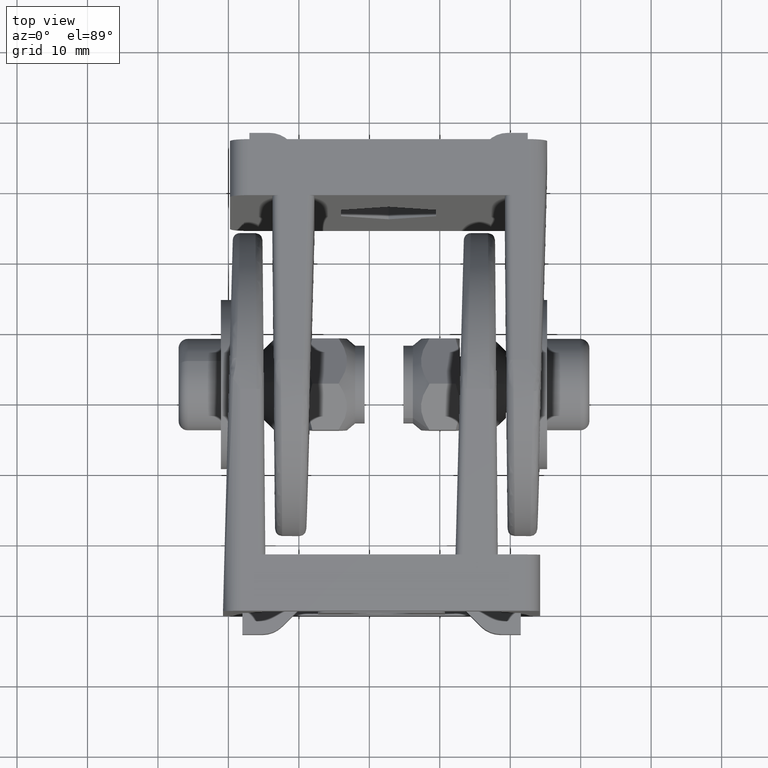
[diagram: clean part render]
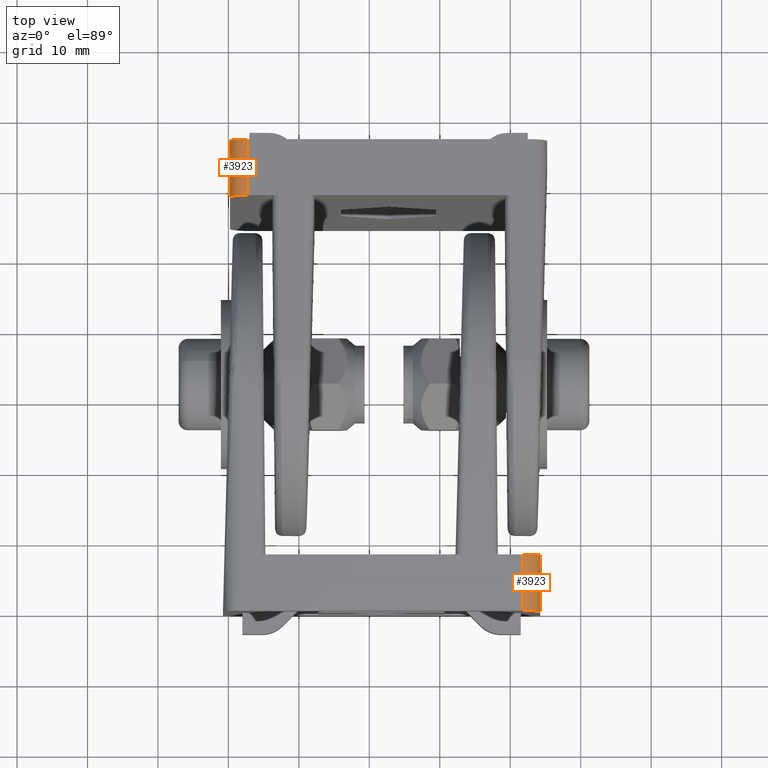
[diagram: same view with one multi-face feature highlighted, each face labeled with its STEP entity id]
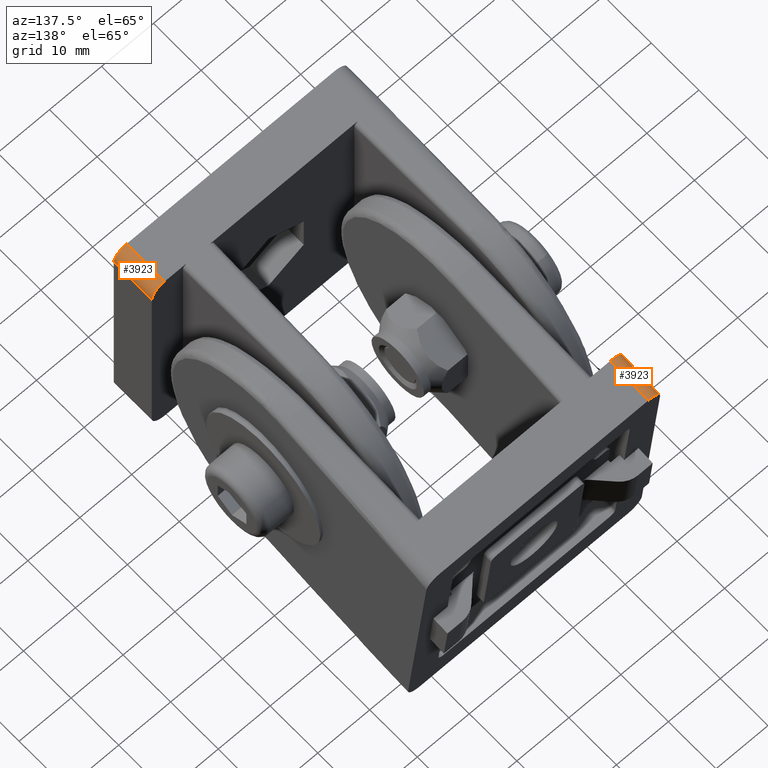
[diagram: same view with one multi-face feature highlighted, each face labeled with its STEP entity id]
A machine part, top view. The highlighted faces form ONE feature: a constant-radius fillet chain: 2 tangent blend faces with common blend radius 2.5 mm. The faces share edges in the B-rep.
A second angle (auxiliary view) of the same feature is appended — it is thin or edge-on in the first view.
Their STEP definitions:
[1] entity #3923 (Cylinder):
#88=LINE('',#5802,#428);
#108=LINE('',#5868,#448);
#428=VECTOR('',#4539,8.);
#448=VECTOR('',#4593,8.);
#986=CYLINDRICAL_SURFACE('',#4196,2.5);
#1066=FACE_OUTER_BOUND('',#1305,.T.);
#1305=EDGE_LOOP('',(#2932,#2933,#2934,#2935));
#1576=CIRCLE('',#4136,2.5);
#1581=CIRCLE('',#4144,2.5);
#1764=VERTEX_POINT('',#5798);
#1766=VERTEX_POINT('',#5801);
#1768=VERTEX_POINT('',#5807);
#1778=VERTEX_POINT('',#5829);
#2153=EDGE_CURVE('',#1764,#1766,#88,.T.);
#2156=EDGE_CURVE('',#1764,#1768,#1576,.T.);
#2167=EDGE_CURVE('',#1766,#1778,#1581,.T.);
#2187=EDGE_CURVE('',#1768,#1778,#108,.T.);
#2932=ORIENTED_EDGE('',*,*,#2156,.T.);
#2933=ORIENTED_EDGE('',*,*,#2187,.T.);
#2934=ORIENTED_EDGE('',*,*,#2167,.F.);
#2935=ORIENTED_EDGE('',*,*,#2153,.F.);
#3923=ADVANCED_FACE('',(#1066),#986,.T.);
#4136=AXIS2_PLACEMENT_3D('',#5808,#4544,#4545);
#4144=AXIS2_PLACEMENT_3D('',#5830,#4564,#4565);
#4196=AXIS2_PLACEMENT_3D('',#6344,#4744,#4745);
#4539=DIRECTION('',(0.,-1.,0.));
#4544=DIRECTION('center_axis',(0.,-1.,0.));
#4545=DIRECTION('ref_axis',(0.,0.,-1.));
#4564=DIRECTION('center_axis',(0.,-1.,0.));
#4565=DIRECTION('ref_axis',(0.,0.,-1.));
#4593=DIRECTION('',(0.,-1.,0.));
#4744=DIRECTION('center_axis',(0.,-1.,0.));
#4745=DIRECTION('ref_axis',(0.,0.,-1.));
#5798=CARTESIAN_POINT('',(22.5,8.,42.5));
#5801=CARTESIAN_POINT('',(22.5,0.,42.5));
#5802=CARTESIAN_POINT('',(22.5,54.,42.5));
#5807=CARTESIAN_POINT('',(20.,8.,45.));
#5808=CARTESIAN_POINT('Origin',(20.,8.,42.5));
#5829=CARTESIAN_POINT('',(20.,0.,45.));
#5830=CARTESIAN_POINT('Origin',(20.,0.,42.5));
#5868=CARTESIAN_POINT('',(20.,54.,45.));
#6344=CARTESIAN_POINT('Origin',(20.,54.,42.5));
[2] entity #3923 (Cylinder):
#88=LINE('',#5802,#428);
#108=LINE('',#5868,#448);
#428=VECTOR('',#4539,8.);
#448=VECTOR('',#4593,8.);
#986=CYLINDRICAL_SURFACE('',#4196,2.5);
#1066=FACE_OUTER_BOUND('',#1305,.T.);
#1305=EDGE_LOOP('',(#2932,#2933,#2934,#2935));
#1576=CIRCLE('',#4136,2.5);
#1581=CIRCLE('',#4144,2.5);
#1764=VERTEX_POINT('',#5798);
#1766=VERTEX_POINT('',#5801);
#1768=VERTEX_POINT('',#5807);
#1778=VERTEX_POINT('',#5829);
#2153=EDGE_CURVE('',#1764,#1766,#88,.T.);
#2156=EDGE_CURVE('',#1764,#1768,#1576,.T.);
#2167=EDGE_CURVE('',#1766,#1778,#1581,.T.);
#2187=EDGE_CURVE('',#1768,#1778,#108,.T.);
#2932=ORIENTED_EDGE('',*,*,#2156,.T.);
#2933=ORIENTED_EDGE('',*,*,#2187,.T.);
#2934=ORIENTED_EDGE('',*,*,#2167,.F.);
#2935=ORIENTED_EDGE('',*,*,#2153,.F.);
#3923=ADVANCED_FACE('',(#1066),#986,.T.);
#4136=AXIS2_PLACEMENT_3D('',#5808,#4544,#4545);
#4144=AXIS2_PLACEMENT_3D('',#5830,#4564,#4565);
#4196=AXIS2_PLACEMENT_3D('',#6344,#4744,#4745);
#4539=DIRECTION('',(0.,-1.,0.));
#4544=DIRECTION('center_axis',(0.,-1.,0.));
#4545=DIRECTION('ref_axis',(0.,0.,-1.));
#4564=DIRECTION('center_axis',(0.,-1.,0.));
#4565=DIRECTION('ref_axis',(0.,0.,-1.));
#4593=DIRECTION('',(0.,-1.,0.));
#4744=DIRECTION('center_axis',(0.,-1.,0.));
#4745=DIRECTION('ref_axis',(0.,0.,-1.));
#5798=CARTESIAN_POINT('',(22.5,8.,42.5));
#5801=CARTESIAN_POINT('',(22.5,0.,42.5));
#5802=CARTESIAN_POINT('',(22.5,54.,42.5));
#5807=CARTESIAN_POINT('',(20.,8.,45.));
#5808=CARTESIAN_POINT('Origin',(20.,8.,42.5));
#5829=CARTESIAN_POINT('',(20.,0.,45.));
#5830=CARTESIAN_POINT('Origin',(20.,0.,42.5));
#5868=CARTESIAN_POINT('',(20.,54.,45.));
#6344=CARTESIAN_POINT('Origin',(20.,54.,42.5));